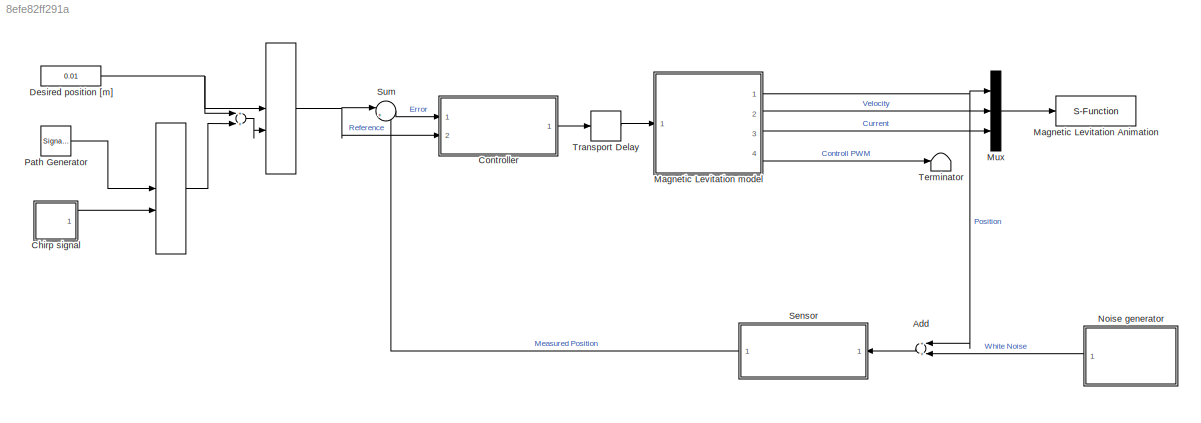
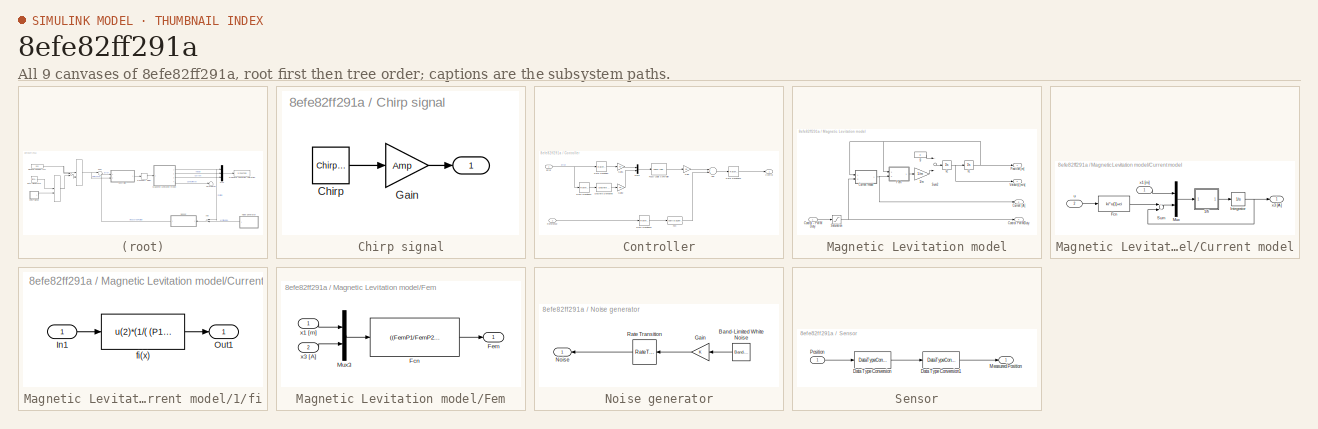
[diagram: thumbnail index - all 9 canvases of the model, root first then tree order]
MODEL slx_8efe82ff291a
KIND model
CONFIG AbsTol = auto
CONFIG FixedStep = 0.0001
CONFIG MaxStep = 0.01
CONFIG MinStep = auto
CONFIG RelTol = 1e-4
CONFIG SampleTimeConstraint = Unconstrained
CONFIG Solver = ode5
CONFIG SolverMode = SingleTasking
CONFIG SolverName = ode5
CONFIG StartTime = 0.0
CONFIG StopTime = 10
BLOCK [ManualSwitch]  
BLOCK [Sum]   
  InputSameDT = off
  OutDataTypeStr = Inherit: Inherit via internal rule
  Ports = [2, 1]
  SaturateOnIntegerOverflow = off
BLOCK [ManualSwitch]     
BLOCK [Sum] Add
  InputSameDT = off
  OutDataTypeStr = Inherit: Inherit via internal rule
  Ports = [2, 1]
  SaturateOnIntegerOverflow = off
BLOCK [SubSystem] Chirp signal
  Ports = [0, 1]
  RequestExecContextInheritance = off
  Variant = off
BLOCK [Outport] Chirp signal/     
  IconDisplay = Port number
BLOCK [Reference] Chirp signal/Chirp  REF=simulink/Sources/Chirp Signal
  Ports = [0, 1]
  SourceBlock = simulink/Sources/Chirp Signal
  SourceType = chirp
  T = T
  VectorParams1D = on
  f1 = finit
  f2 = fstop
BLOCK [Gain] Chirp signal/Gain
  Gain = Amp
  OutDataTypeStr = Inherit: Inherit via internal rule
  ParamDataTypeStr = Inherit: Inherit via internal rule
  SaturateOnIntegerOverflow = off
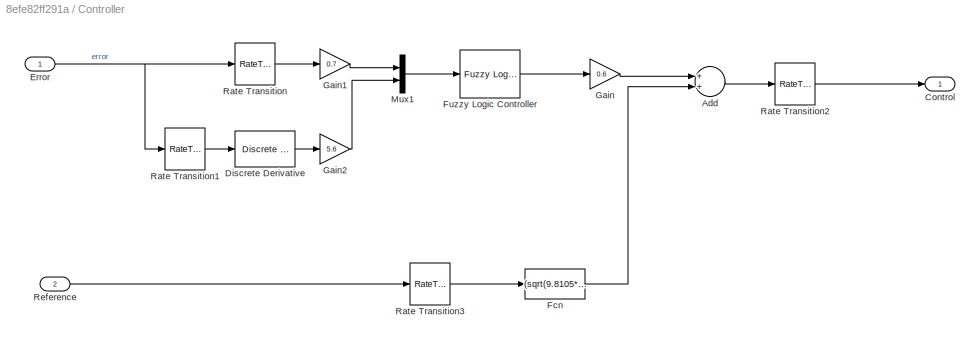
BLOCK [SubSystem] Controller
  Ports = [2, 1]
  RequestExecContextInheritance = off
  Variant = off
BLOCK [Sum] Controller/Add
  InputSameDT = off
  OutDataTypeStr = Inherit: Inherit via internal rule
  Ports = [2, 1]
  SaturateOnIntegerOverflow = off
BLOCK [Outport] Controller/Control
  IconDisplay = Port number
BLOCK [Reference] Controller/Discrete Derivative  REF=simulink/Discrete/Discrete Derivative
  DoSatur = off
  ICPrevScaledInput = 0.0
  InputProcessing = Elements as channels (sample based)
  LockScale = off
  OutDataType = fixdt(1, 16)
  OutDataTypeStr = Inherit: Inherit via internal rule
  OutMax = []
  OutMin = []
  OutScaling = 2^-10
  OutputDataTypeScalingMode = Inherit via internal rule
  Ports = [1, 1]
  RndMeth = Floor
  SourceBlock = simulink/Discrete/Discrete Derivative
  SourceType = Discrete Derivative
  gainval = 1.0
BLOCK [Inport] Controller/Error
  IconDisplay = Port number
BLOCK [Fcn] Controller/Fcn
  Expr = (sqrt(9.8105*0.0571*(5.8231e-3)*exp(u(1)/(5.8231e-3))/1.7521e-2)-0.0243)/2.5165
BLOCK [Reference] Controller/Fuzzy Logic Controller  REF=fuzblock/Fuzzy Logic   (lib defined in mdl_858b3b3e7478)
Controller
  Ports = [1, 1]
  SourceBlock = fuzblock/Fuzzy Logic \nController
  SourceType = FIS
  fis = [maglev_s2]
BLOCK [Gain] Controller/Gain
  Gain = 0.6
  OutDataTypeStr = Inherit: Inherit via internal rule
  ParamDataTypeStr = Inherit: Inherit via internal rule
  SaturateOnIntegerOverflow = off
BLOCK [Gain] Controller/Gain1
  Gain = 0.7
  OutDataTypeStr = Inherit: Inherit via internal rule
  ParamDataTypeStr = Inherit: Inherit via internal rule
  SaturateOnIntegerOverflow = off
BLOCK [Gain] Controller/Gain2
  Gain = 5.6
  OutDataTypeStr = Inherit: Inherit via internal rule
  ParamDataTypeStr = Inherit: Inherit via internal rule
  SaturateOnIntegerOverflow = off
BLOCK [Mux] Controller/Mux1
  DisplayOption = bar
  Inputs = 2
  Ports = [2, 1]
BLOCK [RateTransition] Controller/Rate Transition
  OutPortSampleTime = 0.001
BLOCK [RateTransition] Controller/Rate Transition1
  OutPortSampleTime = 0.001
BLOCK [RateTransition] Controller/Rate Transition2
  OutPortSampleTime = 0.0001
BLOCK [RateTransition] Controller/Rate Transition3
  OutPortSampleTime = 0.001
BLOCK [Inport] Controller/Reference 
  IconDisplay = Port number
  Port = 2
BLOCK [Constant] Desired position [m]
  Value = 0.01
BLOCK [S-Function] Magnetic Levitation Animation
  Commented = on
  DeleteFcn = if ~isempty(findobj('type','figure','name','onecart Animation'));close('onecart Animation'); end;
  EnableBusSupport = off
  FunctionName = ML_anim
  Parameters = 0.01
  Ports = [1]
  SFunctionDeploymentMode = off
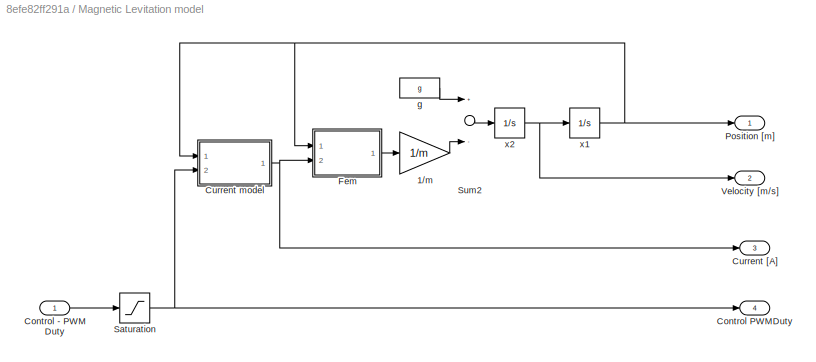
BLOCK [SubSystem] Magnetic Levitation model
  Ports = [1, 4]
  RequestExecContextInheritance = off
  Variant = off
BLOCK [Gain] Magnetic Levitation model/1//m
  Gain = 1/m
BLOCK [Inport] Magnetic Levitation model/Control - PWM Duty
  IconDisplay = Port number
BLOCK [Outport] Magnetic Levitation model/Control PWMDuty
  IconDisplay = Port number
  InitialOutput = 0
  Port = 4
BLOCK [Outport] Magnetic Levitation model/Current [A]
  IconDisplay = Port number
  InitialOutput = 0
  Port = 3
BLOCK [SubSystem] Magnetic Levitation model/Current model
  Ports = [2, 1]
  RequestExecContextInheritance = off
  Variant = off
BLOCK [SubSystem] Magnetic Levitation model/Current model/1//fi
  Ports = [1, 1]
  RequestExecContextInheritance = off
  Variant = off
BLOCK [Inport] Magnetic Levitation model/Current model/1//fi/In1
  IconDisplay = Port number
BLOCK [Outport] Magnetic Levitation model/Current model/1//fi/Out1
  IconDisplay = Port number
BLOCK [Fcn] Magnetic Levitation model/Current model/1//fi/fi(x)
  Expr = u(2)*(1/( (P1/P2)*exp(-u(1)/P2) ))
BLOCK [Fcn] Magnetic Levitation model/Current model/Fcn
  Expr = ki*u(1)+ci
BLOCK [Integrator] Magnetic Levitation model/Current model/Integrator
  InitialCondition = x0(3)
  LimitOutput = on
  LowerSaturationLimit = x3min
  Ports = [1, 1]
  UpperSaturationLimit = x3max
BLOCK [Mux] Magnetic Levitation model/Current model/Mux
  DisplayOption = bar
  Inputs = 2
  Ports = [2, 1]
BLOCK [Sum] Magnetic Levitation model/Current model/Sum
  Inputs = +-
  Ports = [2, 1]
BLOCK [Inport] Magnetic Levitation model/Current model/u
  IconDisplay = Port number
  Port = 2
BLOCK [Inport] Magnetic Levitation model/Current model/x1 [m]
  IconDisplay = Port number
BLOCK [Outport] Magnetic Levitation model/Current model/x3 [A]
  IconDisplay = Port number
BLOCK [SubSystem] Magnetic Levitation model/Fem
  Ports = [2, 1]
  RequestExecContextInheritance = off
  Variant = off
BLOCK [Fcn] Magnetic Levitation model/Fem/Fcn
  Expr = ((FemP1/FemP2)*exp(-u(1)/FemP2))*u(2)^2
BLOCK [Outport] Magnetic Levitation model/Fem/Fem
  IconDisplay = Port number
BLOCK [Mux] Magnetic Levitation model/Fem/Mux3
  DisplayOption = bar
  Inputs = 2
  Ports = [2, 1]
BLOCK [Inport] Magnetic Levitation model/Fem/x1 [m]
  IconDisplay = Port number
BLOCK [Inport] Magnetic Levitation model/Fem/x3 [A]
  IconDisplay = Port number
  Port = 2
BLOCK [Outport] Magnetic Levitation model/Position [m]
  IconDisplay = Port number
  InitialOutput = 0
BLOCK [Saturate] Magnetic Levitation model/Saturation
  InputPortMap = u0
  LowerLimit = umin
  Ports = [1, 1]
  UpperLimit = umax
BLOCK [Sum] Magnetic Levitation model/Sum2
  Inputs = +-
  Ports = [2, 1]
BLOCK [Outport] Magnetic Levitation model/Velocity [m//s]
  IconDisplay = Port number
  InitialOutput = 0
  Port = 2
BLOCK [Constant] Magnetic Levitation model/g
  Value = g
BLOCK [Integrator] Magnetic Levitation model/x1
  InitialCondition = x0(1)
  LimitOutput = on
  LowerSaturationLimit = 0.0001
  Ports = [1, 1]
  UpperSaturationLimit = 0.02
BLOCK [Integrator] Magnetic Levitation model/x2
  InitialCondition = x0(2)
  LowerSaturationLimit = -10
  Ports = [1, 1]
  UpperSaturationLimit = 10
BLOCK [Mux] Mux
  DisplayOption = bar
  Inputs = 3
  Ports = [3, 1]
BLOCK [SubSystem] Noise generator
  Ports = [0, 1]
  RequestExecContextInheritance = off
  Variant = off
BLOCK [Reference] Noise generator/Band-Limited White Noise  REF=simulink/Sources/Band-Limited
White Noise
  Cov = [1e-12]
  Ports = [0, 1]
  SourceBlock = simulink/Sources/Band-Limited\nWhite Noise
  SourceType = Band-Limited White Noise.
  Ts = 0.01
  VectorParams1D = on
  seed = [floor(rand*100)]
BLOCK [Gain] Noise generator/Gain
  OutDataTypeStr = Inherit: Inherit via internal rule
  ParamDataTypeStr = Inherit: Inherit via internal rule
  SaturateOnIntegerOverflow = off
BLOCK [Outport] Noise generator/Noise
  IconDisplay = Port number
BLOCK [RateTransition] Noise generator/Rate Transition
BLOCK [SignalGenerator] Path Generator
  Amplitude = Amp
  Frequency = freq
  Ports = [0, 1]
  WaveForm = square
BLOCK [SubSystem] Sensor
  Ports = [1, 1]
  RequestExecContextInheritance = off
  Variant = off
BLOCK [DataTypeConversion] Sensor/Data Type Conversion
  OutDataTypeStr = fixdt(0,12)
  OutMax = [0.02]
  OutMin = [0]
  RndMeth = Floor
  SaturateOnIntegerOverflow = off
BLOCK [DataTypeConversion] Sensor/Data Type Conversion1
  OutDataTypeStr = double
  OutMax = [2]
  OutMin = [0]
  RndMeth = Floor
  SaturateOnIntegerOverflow = off
BLOCK [Outport] Sensor/Measured Position
  IconDisplay = Port number
BLOCK [Inport] Sensor/Position
  IconDisplay = Port number
BLOCK [Sum] Sum
  IconShape = round
  InputSameDT = off
  Inputs = |+-
  OutDataTypeStr = Inherit: Inherit via internal rule
  Ports = [2, 1]
  SaturateOnIntegerOverflow = off
BLOCK [Terminator] Terminator
BLOCK [TransportDelay] Transport Delay
  DelayTime = 0.01
  Ports = [1, 1]
LINE     :1 ->   :2
LINE   :1 ->  :2
NET  :1 -> Controller:2, Sum:1
LINE Add:1 -> Sensor:1
LINE Chirp signal/Chirp:1 -> Chirp signal/Gain:1
LINE Chirp signal/Gain:1 -> Chirp signal/     :1
LINE Chirp signal:1 ->     :2
LINE Controller/Add:1 -> Controller/Rate Transition2:1
LINE Controller/Discrete Derivative:1 -> Controller/Gain2:1
NET Controller/Error:1 -> Controller/Rate Transition1:1, Controller/Rate Transition:1
LINE Controller/Fcn:1 -> Controller/Add:2
LINE Controller/Fuzzy Logic Controller:1 -> Controller/Gain:1
LINE Controller/Gain1:1 -> Controller/Mux1:1
LINE Controller/Gain2:1 -> Controller/Mux1:2
LINE Controller/Gain:1 -> Controller/Add:1
LINE Controller/Mux1:1 -> Controller/Fuzzy Logic Controller:1
LINE Controller/Rate Transition1:1 -> Controller/Discrete Derivative:1
LINE Controller/Rate Transition2:1 -> Controller/Control:1
LINE Controller/Rate Transition3:1 -> Controller/Fcn:1
LINE Controller/Rate Transition:1 -> Controller/Gain1:1
LINE Controller/Reference :1 -> Controller/Rate Transition3:1
LINE Controller:1 -> Transport Delay:1
NET Desired position [m]:1 ->   :1,  :1
LINE Magnetic Levitation model/1//m:1 -> Magnetic Levitation model/Sum2:2
LINE Magnetic Levitation model/Control - PWM Duty:1 -> Magnetic Levitation model/Saturation:1
LINE Magnetic Levitation model/Current model/1//fi/In1:1 -> Magnetic Levitation model/Current model/1//fi/fi(x):1
LINE Magnetic Levitation model/Current model/1//fi/fi(x):1 -> Magnetic Levitation model/Current model/1//fi/Out1:1
LINE Magnetic Levitation model/Current model/1//fi:1 -> Magnetic Levitation model/Current model/Integrator:1
LINE Magnetic Levitation model/Current model/Fcn:1 -> Magnetic Levitation model/Current model/Sum:1
NET Magnetic Levitation model/Current model/Integrator:1 -> Magnetic Levitation model/Current model/Sum:2, Magnetic Levitation model/Current model/x3 [A]:1
LINE Magnetic Levitation model/Current model/Mux:1 -> Magnetic Levitation model/Current model/1//fi:1
LINE Magnetic Levitation model/Current model/Sum:1 -> Magnetic Levitation model/Current model/Mux:2
LINE Magnetic Levitation model/Current model/u:1 -> Magnetic Levitation model/Current model/Fcn:1
LINE Magnetic Levitation model/Current model/x1 [m]:1 -> Magnetic Levitation model/Current model/Mux:1
NET Magnetic Levitation model/Current model:1 -> Magnetic Levitation model/Current [A]:1, Magnetic Levitation model/Fem:2
LINE Magnetic Levitation model/Fem/Fcn:1 -> Magnetic Levitation model/Fem/Fem:1
LINE Magnetic Levitation model/Fem/Mux3:1 -> Magnetic Levitation model/Fem/Fcn:1
LINE Magnetic Levitation model/Fem/x1 [m]:1 -> Magnetic Levitation model/Fem/Mux3:1
LINE Magnetic Levitation model/Fem/x3 [A]:1 -> Magnetic Levitation model/Fem/Mux3:2
LINE Magnetic Levitation model/Fem:1 -> Magnetic Levitation model/1//m:1
NET Magnetic Levitation model/Saturation:1 -> Magnetic Levitation model/Control PWMDuty:1, Magnetic Levitation model/Current model:2
LINE Magnetic Levitation model/Sum2:1 -> Magnetic Levitation model/x2:1
LINE Magnetic Levitation model/g:1 -> Magnetic Levitation model/Sum2:1
NET Magnetic Levitation model/x1:1 -> Magnetic Levitation model/Current model:1, Magnetic Levitation model/Fem:1, Magnetic Levitation model/Position [m]:1
NET Magnetic Levitation model/x2:1 -> Magnetic Levitation model/Velocity [m//s]:1, Magnetic Levitation model/x1:1
NET Magnetic Levitation model:1 -> Add:1, Mux:1
LINE Magnetic Levitation model:2 -> Mux:2
LINE Magnetic Levitation model:3 -> Mux:3
LINE Magnetic Levitation model:4 -> Terminator:1
LINE Mux:1 -> Magnetic Levitation Animation:1
LINE Noise generator/Band-Limited White Noise:1 -> Noise generator/Gain:1
LINE Noise generator/Gain:1 -> Noise generator/Rate Transition:1
LINE Noise generator/Rate Transition:1 -> Noise generator/Noise:1
LINE Noise generator:1 -> Add:2
LINE Path Generator:1 ->     :1
LINE Sensor/Data Type Conversion1:1 -> Sensor/Measured Position:1
LINE Sensor/Data Type Conversion:1 -> Sensor/Data Type Conversion1:1
LINE Sensor/Position:1 -> Sensor/Data Type Conversion:1
LINE Sensor:1 -> Sum:2
LINE Sum:1 -> Controller:1
LINE Transport Delay:1 -> Magnetic Levitation model:1
note: NET lines group one-source signal fan-out (src -> all destinations, sorted); 1:1 wires keep LINE
